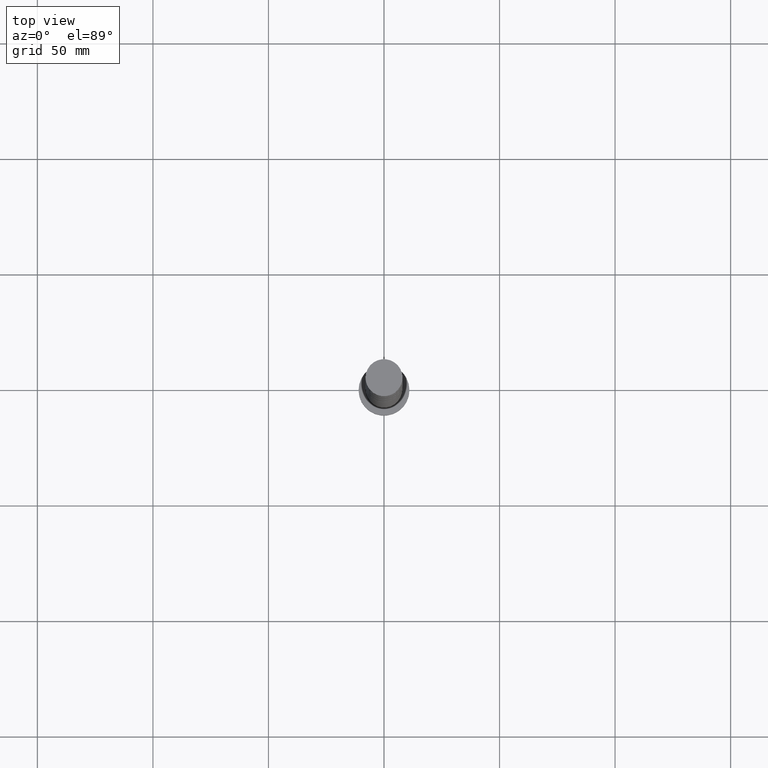
[diagram: clean part render]
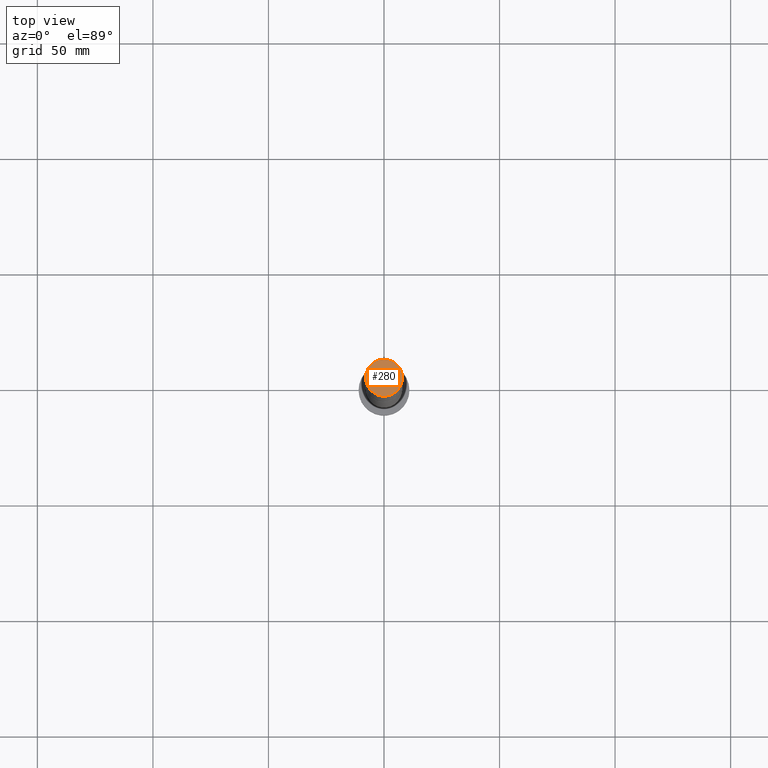
[diagram: same view with one face highlighted and labeled with its STEP entity id]
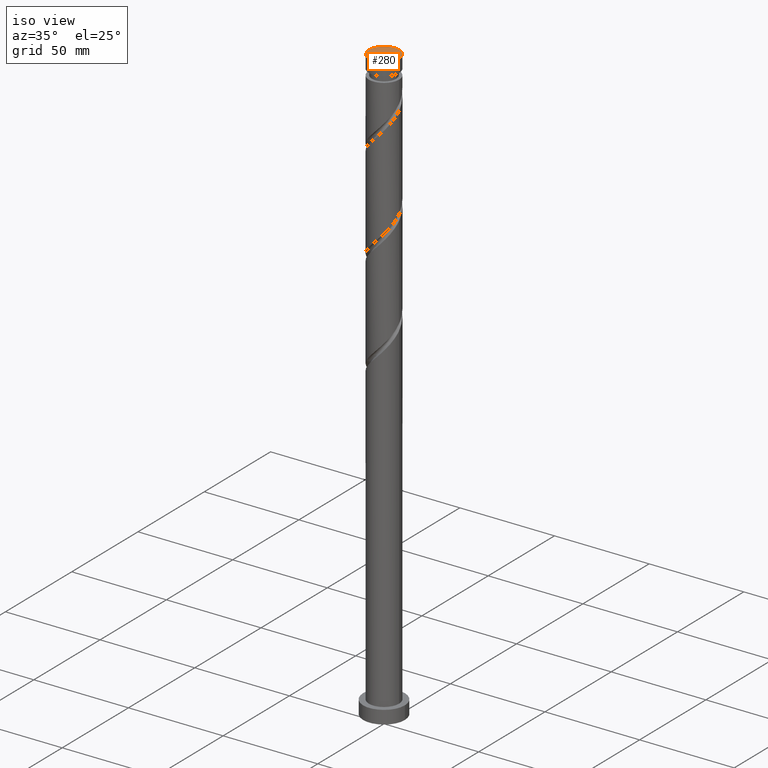
[diagram: same view with one face highlighted and labeled with its STEP entity id]
A machine part, top view. The second image highlights one B-rep face of the part: STEP entity #280.
A second angle (iso view) of the same face is appended — the face is thin or edge-on in the first view.
In plain terms, the highlighted planar face has unit normal (0, 0, 1).
Its self-contained STEP definition (entity closure, byte-faithful):
#94 = DIRECTION ( 'NONE',  ( 0.000000000000000000, 0.000000000000000000, 1.000000000000000000 ) ) ;
#256 = ORIENTED_EDGE ( 'NONE', *, *, #943, .T. ) ;
#280 = ADVANCED_FACE ( 'NONE', ( #702 ), #1650, .T. ) ;
#285 = CARTESIAN_POINT ( 'NONE',  ( -8.000000000000000000, 0.000000000000000000, 315.0000000000000000 ) ) ;
#394 = AXIS2_PLACEMENT_3D ( 'NONE', #1554, #94, #696 ) ;
#499 = CARTESIAN_POINT ( 'NONE',  ( 8.000000000000000000, 9.797174393178825657E-16, 315.0000000000000000 ) ) ;
#555 = AXIS2_PLACEMENT_3D ( 'NONE', #1529, #1372, #1673 ) ;
#592 = CIRCLE ( 'NONE', #555, 8.000000000000000000 ) ;
#639 = VERTEX_POINT ( 'NONE', #285 ) ;
#696 = DIRECTION ( 'NONE',  ( 1.000000000000000000, 0.000000000000000000, 0.000000000000000000 ) ) ;
#702 = FACE_OUTER_BOUND ( 'NONE', #1177, .T. ) ;
#851 = VERTEX_POINT ( 'NONE', #499 ) ;
#868 = DIRECTION ( 'NONE',  ( 1.000000000000000000, 0.000000000000000000, -0.000000000000000000 ) ) ;
#870 = EDGE_CURVE ( 'NONE', #851, #639, #592, .T. ) ;
#910 = CARTESIAN_POINT ( 'NONE',  ( 0.000000000000000000, 0.000000000000000000, 315.0000000000000000 ) ) ;
#943 = EDGE_CURVE ( 'NONE', #639, #851, #1578, .T. ) ;
#1015 = ORIENTED_EDGE ( 'NONE', *, *, #870, .T. ) ;
#1177 = EDGE_LOOP ( 'NONE', ( #256, #1015 ) ) ;
#1372 = DIRECTION ( 'NONE',  ( 0.000000000000000000, 0.000000000000000000, 1.000000000000000000 ) ) ;
#1529 = CARTESIAN_POINT ( 'NONE',  ( 0.000000000000000000, 0.000000000000000000, 315.0000000000000000 ) ) ;
#1548 = DIRECTION ( 'NONE',  ( 0.000000000000000000, 0.000000000000000000, 1.000000000000000000 ) ) ;
#1554 = CARTESIAN_POINT ( 'NONE',  ( 0.000000000000000000, 0.000000000000000000, 315.0000000000000000 ) ) ;
#1578 = CIRCLE ( 'NONE', #394, 8.000000000000000000 ) ;
#1650 = PLANE ( 'NONE',  #1921 ) ;
#1673 = DIRECTION ( 'NONE',  ( 1.000000000000000000, 0.000000000000000000, 0.000000000000000000 ) ) ;
#1921 = AXIS2_PLACEMENT_3D ( 'NONE', #910, #1548, #868 ) ;